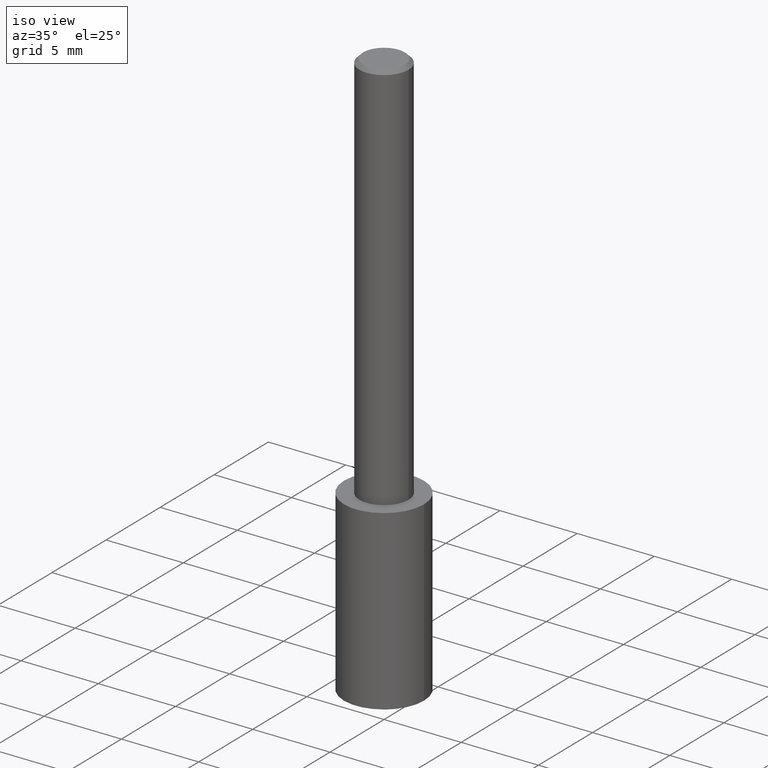
[diagram: clean part render]
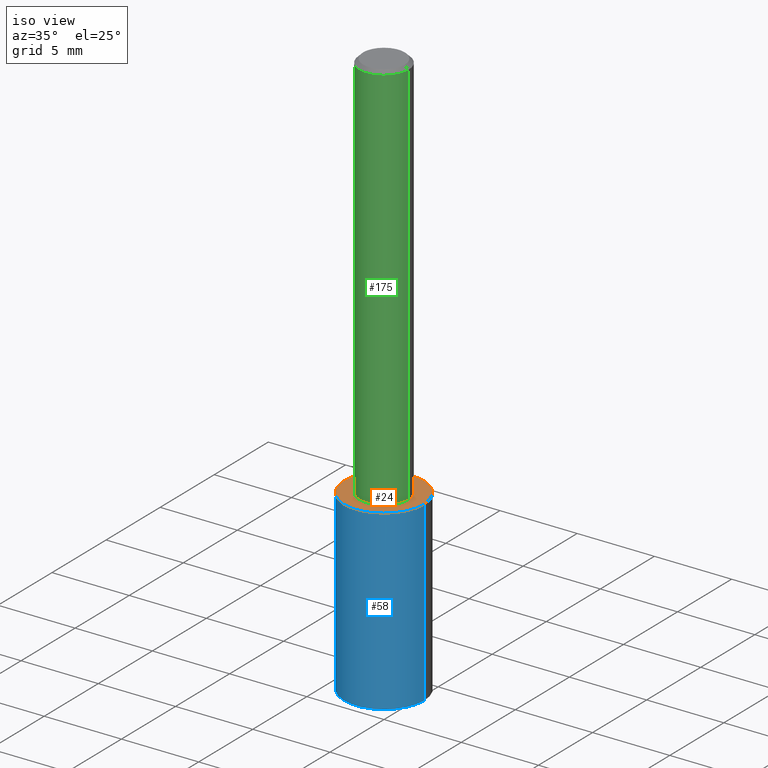
[diagram: same view with three faces highlighted in distinct colors, each labeled with its STEP entity id]
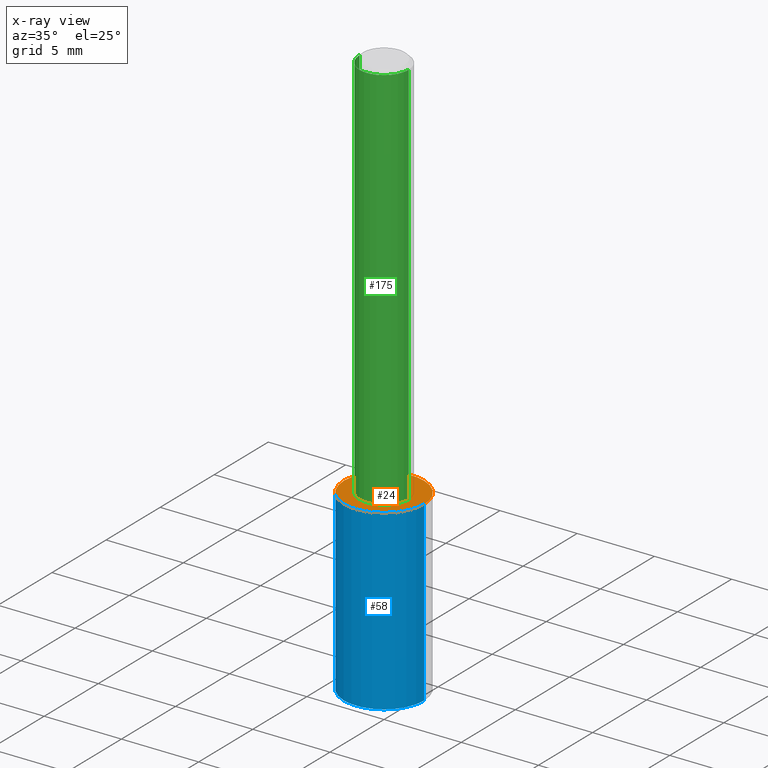
[diagram: x-ray of the same camera — body ghosted, the three highlighted faces saturated]
A machine part, iso view with three faces highlighted in distinct colors.
The next image is the same camera in x-ray (body ghosted, the three faces saturated) — at least one of them is partly hidden behind the body in this view.
Their STEP definitions:

[orange] entity #24 — the highlighted planar face has unit normal (0, -0, -1).
#18 = FACE_OUTER_BOUND ( 'NONE', #310, .T. ) ;
#22 = AXIS2_PLACEMENT_3D ( 'NONE', #197, #220, #163 ) ;
#24 = ADVANCED_FACE ( 'NONE', ( #18 ), #136, .F. ) ;
#49 = CARTESIAN_POINT ( 'NONE',  ( 3.380586089561100966E-29, -2.152340165478311368E-15, -1.000000000000000222 ) ) ;
#77 = AXIS2_PLACEMENT_3D ( 'NONE', #49, #104, #154 ) ;
#104 = DIRECTION ( 'NONE',  ( 2.438088387897960049E-29, -3.491481338843145188E-15, -1.000000000000000000 ) ) ;
#105 = AXIS2_PLACEMENT_3D ( 'NONE', #206, #311, #301 ) ;
#118 = CIRCLE ( 'NONE', #105, 0.1019999999999999934 ) ;
#136 = PLANE ( 'NONE',  #77 ) ;
#148 = ORIENTED_EDGE ( 'NONE', *, *, #180, .T. ) ;
#154 = DIRECTION ( 'NONE',  ( -1.000000000000000000, 6.982962677686265922E-15, -4.876176775795935793E-29 ) ) ;
#158 = CIRCLE ( 'NONE', #22, 0.1019999999999999934 ) ;
#163 = DIRECTION ( 'NONE',  ( 1.000000000000000000, -6.982962677686266711E-15, 0.000000000000000000 ) ) ;
#180 = EDGE_CURVE ( 'NONE', #201, #229, #118, .T. ) ;
#197 = CARTESIAN_POINT ( 'NONE',  ( 2.445468806185136877E-29, -3.491481338843145977E-15, -1.000000000000000222 ) ) ;
#201 = VERTEX_POINT ( 'NONE', #326 ) ;
#204 = ORIENTED_EDGE ( 'NONE', *, *, #265, .T. ) ;
#206 = CARTESIAN_POINT ( 'NONE',  ( 2.445468806185136877E-29, -3.491481338843145977E-15, -1.000000000000000222 ) ) ;
#220 = DIRECTION ( 'NONE',  ( -2.445468806185136597E-29, 3.491481338843145583E-15, 1.000000000000000000 ) ) ;
#229 = VERTEX_POINT ( 'NONE', #267 ) ;
#265 = EDGE_CURVE ( 'NONE', #229, #201, #158, .T. ) ;
#267 = CARTESIAN_POINT ( 'NONE',  ( 0.1019999999999999934, -4.203743531967145466E-15, -1.000000000000000222 ) ) ;
#301 = DIRECTION ( 'NONE',  ( 1.000000000000000000, -6.982962677686266711E-15, 0.000000000000000000 ) ) ;
#310 = EDGE_LOOP ( 'NONE', ( #204, #148 ) ) ;
#311 = DIRECTION ( 'NONE',  ( -2.445468806185136597E-29, 3.491481338843145583E-15, 1.000000000000000000 ) ) ;
#326 = CARTESIAN_POINT ( 'NONE',  ( -0.1019999999999999934, -3.556564754261631994E-15, -1.000000000000000222 ) ) ;

[blue] entity #58 — the highlighted cylindrical surface (partial cylindrical patch) has radius 2.5908 mm, axis along (-0, 0, 1).
#9 = CARTESIAN_POINT ( 'NONE',  ( -0.1019999999999999796, -4.346401760155420845E-15, -1.452436618868190976 ) ) ;
#15 = ORIENTED_EDGE ( 'NONE', *, *, #274, .T. ) ;
#25 = DIRECTION ( 'NONE',  ( -2.445468806185136597E-29, 3.491481338843145583E-15, 1.000000000000000000 ) ) ;
#33 = DIRECTION ( 'NONE',  ( -2.445468806185136877E-29, 3.491481338843145188E-15, 1.000000000000000000 ) ) ;
#35 = DIRECTION ( 'NONE',  ( -2.445468806185136877E-29, 3.491481338843145188E-15, 1.000000000000000000 ) ) ;
#58 = ADVANCED_FACE ( 'NONE', ( #316 ), #156, .T. ) ;
#67 = VERTEX_POINT ( 'NONE', #9 ) ;
#74 = ORIENTED_EDGE ( 'NONE', *, *, #180, .F. ) ;
#90 = DIRECTION ( 'NONE',  ( 1.000000000000000000, -6.982962677686266711E-15, 0.000000000000000000 ) ) ;
#97 = VERTEX_POINT ( 'NONE', #184 ) ;
#105 = AXIS2_PLACEMENT_3D ( 'NONE', #206, #311, #301 ) ;
#112 = CIRCLE ( 'NONE', #268, 0.1019999999999999934 ) ;
#116 = LINE ( 'NONE', #140, #251 ) ;
#118 = CIRCLE ( 'NONE', #105, 0.1019999999999999934 ) ;
#140 = CARTESIAN_POINT ( 'NONE',  ( 0.1019999999999999934, -4.203743531967145466E-15, -1.000000000000000222 ) ) ;
#156 = CYLINDRICAL_SURFACE ( 'NONE', #188, 0.1019999999999999934 ) ;
#173 = ORIENTED_EDGE ( 'NONE', *, *, #308, .F. ) ;
#180 = EDGE_CURVE ( 'NONE', #201, #229, #118, .T. ) ;
#182 = VECTOR ( 'NONE', #33, 39.37007874015748143 ) ;
#184 = CARTESIAN_POINT ( 'NONE',  ( 0.1019999999999999796, -5.783417543754722378E-15, -1.452436618868190976 ) ) ;
#188 = AXIS2_PLACEMENT_3D ( 'NONE', #210, #25, #313 ) ;
#194 = CARTESIAN_POINT ( 'NONE',  ( -0.1019999999999999934, -2.766727748367844721E-15, -1.000000000000000222 ) ) ;
#201 = VERTEX_POINT ( 'NONE', #326 ) ;
#206 = CARTESIAN_POINT ( 'NONE',  ( 2.445468806185136877E-29, -3.491481338843145977E-15, -1.000000000000000222 ) ) ;
#210 = CARTESIAN_POINT ( 'NONE',  ( 2.445468806185137438E-29, -3.491481338843146371E-15, -1.000000000000000222 ) ) ;
#211 = EDGE_CURVE ( 'NONE', #97, #229, #116, .T. ) ;
#229 = VERTEX_POINT ( 'NONE', #267 ) ;
#230 = EDGE_LOOP ( 'NONE', ( #173, #15, #309, #74 ) ) ;
#245 = DIRECTION ( 'NONE',  ( -2.445468806185136597E-29, 3.491481338843145583E-15, 1.000000000000000000 ) ) ;
#251 = VECTOR ( 'NONE', #35, 39.37007874015748143 ) ;
#267 = CARTESIAN_POINT ( 'NONE',  ( 0.1019999999999999934, -4.203743531967145466E-15, -1.000000000000000222 ) ) ;
#268 = AXIS2_PLACEMENT_3D ( 'NONE', #296, #245, #90 ) ;
#274 = EDGE_CURVE ( 'NONE', #67, #97, #112, .T. ) ;
#296 = CARTESIAN_POINT ( 'NONE',  ( 3.551888444403171231E-29, -5.071155350630722890E-15, -1.452436618868190976 ) ) ;
#301 = DIRECTION ( 'NONE',  ( 1.000000000000000000, -6.982962677686266711E-15, 0.000000000000000000 ) ) ;
#308 = EDGE_CURVE ( 'NONE', #67, #201, #323, .T. ) ;
#309 = ORIENTED_EDGE ( 'NONE', *, *, #211, .T. ) ;
#311 = DIRECTION ( 'NONE',  ( -2.445468806185136597E-29, 3.491481338843145583E-15, 1.000000000000000000 ) ) ;
#313 = DIRECTION ( 'NONE',  ( 1.000000000000000000, -6.982962677686266711E-15, 0.000000000000000000 ) ) ;
#316 = FACE_OUTER_BOUND ( 'NONE', #230, .T. ) ;
#323 = LINE ( 'NONE', #194, #182 ) ;
#326 = CARTESIAN_POINT ( 'NONE',  ( -0.1019999999999999934, -3.556564754261631994E-15, -1.000000000000000222 ) ) ;

[green] entity #175 — the highlighted cylindrical surface (edge-blend (fillet) strip) has radius 1.5875 mm, axis along (-0, 0, 1).
#7 = CARTESIAN_POINT ( 'NONE',  ( -0.06250000000000012490, -1.318017778347335489E-15, -1.000000000000000222 ) ) ;
#16 = CIRCLE ( 'NONE', #66, 0.06250000000000000000 ) ;
#23 = CARTESIAN_POINT ( 'NONE',  ( 2.292627005798582375E-31, -3.273263755165473266E-17, -0.009375000000000069042 ) ) ;
#36 = AXIS2_PLACEMENT_3D ( 'NONE', #133, #315, #262 ) ;
#41 = LINE ( 'NONE', #123, #147 ) ;
#66 = AXIS2_PLACEMENT_3D ( 'NONE', #23, #215, #86 ) ;
#73 = EDGE_CURVE ( 'NONE', #279, #303, #41, .T. ) ;
#86 = DIRECTION ( 'NONE',  ( 1.000000000000000000, -6.982962677686266711E-15, 0.000000000000000000 ) ) ;
#88 = CARTESIAN_POINT ( 'NONE',  ( -0.06250000000000006939, 4.440892098500631092E-16, -3.074334431409319267E-30 ) ) ;
#89 = CARTESIAN_POINT ( 'NONE',  ( 0.06250000000000012490, -3.927916506198539224E-15, -1.000000000000000222 ) ) ;
#94 = CARTESIAN_POINT ( 'NONE',  ( -0.06250000000000000000, -1.318017778347336672E-15, -0.009375000000000069042 ) ) ;
#100 = ORIENTED_EDGE ( 'NONE', *, *, #127, .T. ) ;
#102 = DIRECTION ( 'NONE',  ( 1.000000000000000000, -6.982962677686266711E-15, 4.876176775795935793E-29 ) ) ;
#114 = DIRECTION ( 'NONE',  ( -2.445468806185136877E-29, 3.491481338843145188E-15, 1.000000000000000000 ) ) ;
#121 = EDGE_CURVE ( 'NONE', #202, #303, #16, .T. ) ;
#123 = CARTESIAN_POINT ( 'NONE',  ( 0.06250000000000006939, -4.364351673553921624E-16, 3.047610484872463374E-30 ) ) ;
#127 = EDGE_CURVE ( 'NONE', #304, #279, #131, .T. ) ;
#131 = CIRCLE ( 'NONE', #36, 0.06250000000000012490 ) ;
#133 = CARTESIAN_POINT ( 'NONE',  ( 2.445468806185137438E-29, -3.491481338843146371E-15, -1.000000000000000222 ) ) ;
#138 = CARTESIAN_POINT ( 'NONE',  ( 0.000000000000000000, 0.000000000000000000, 0.000000000000000000 ) ) ;
#147 = VECTOR ( 'NONE', #305, 39.37007874015748143 ) ;
#171 = AXIS2_PLACEMENT_3D ( 'NONE', #138, #337, #102 ) ;
#175 = ADVANCED_FACE ( 'NONE', ( #190 ), #264, .T. ) ;
#190 = FACE_OUTER_BOUND ( 'NONE', #228, .T. ) ;
#202 = VERTEX_POINT ( 'NONE', #94 ) ;
#215 = DIRECTION ( 'NONE',  ( -2.445468806185136597E-29, 3.491481338843145583E-15, 1.000000000000000000 ) ) ;
#219 = CARTESIAN_POINT ( 'NONE',  ( 0.06250000000000000000, -4.691678049070464390E-16, -0.009375000000000069042 ) ) ;
#228 = EDGE_LOOP ( 'NONE', ( #333, #100, #275, #254 ) ) ;
#240 = EDGE_CURVE ( 'NONE', #304, #202, #269, .T. ) ;
#254 = ORIENTED_EDGE ( 'NONE', *, *, #121, .F. ) ;
#256 = VECTOR ( 'NONE', #114, 39.37007874015748143 ) ;
#262 = DIRECTION ( 'NONE',  ( 1.000000000000000000, -6.982962677686264344E-15, 0.000000000000000000 ) ) ;
#264 = CYLINDRICAL_SURFACE ( 'NONE', #171, 0.06250000000000006939 ) ;
#269 = LINE ( 'NONE', #88, #256 ) ;
#275 = ORIENTED_EDGE ( 'NONE', *, *, #73, .T. ) ;
#279 = VERTEX_POINT ( 'NONE', #89 ) ;
#303 = VERTEX_POINT ( 'NONE', #219 ) ;
#304 = VERTEX_POINT ( 'NONE', #7 ) ;
#305 = DIRECTION ( 'NONE',  ( -2.445468806185136877E-29, 3.491481338843145188E-15, 1.000000000000000000 ) ) ;
#315 = DIRECTION ( 'NONE',  ( -2.445468806185136597E-29, 3.491481338843145583E-15, 1.000000000000000000 ) ) ;
#333 = ORIENTED_EDGE ( 'NONE', *, *, #240, .F. ) ;
#337 = DIRECTION ( 'NONE',  ( -2.445468806185136597E-29, 3.491481338843145583E-15, 1.000000000000000000 ) ) ;